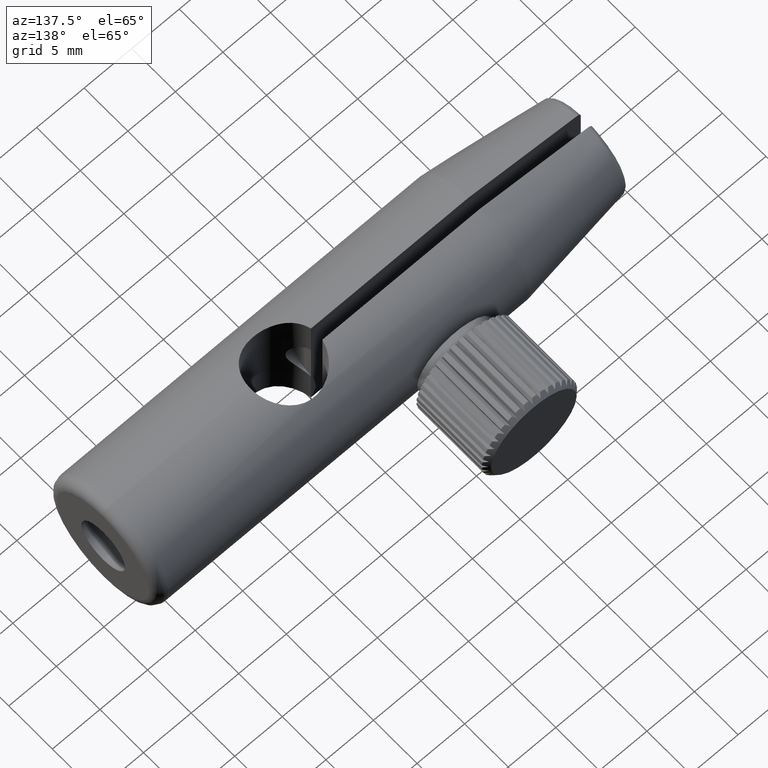
[diagram: clean part render]
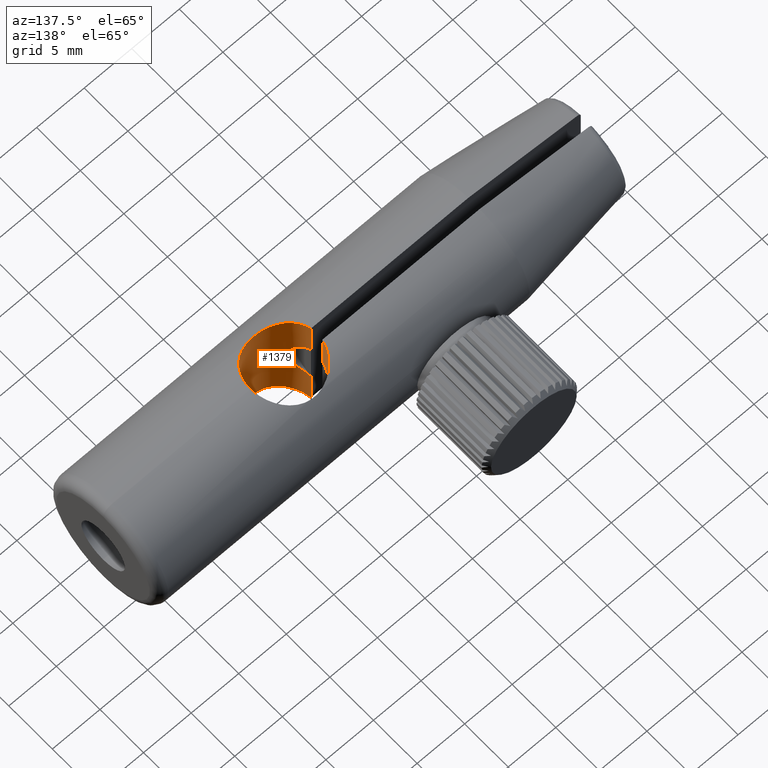
[diagram: same view with one face highlighted and labeled with its STEP entity id]
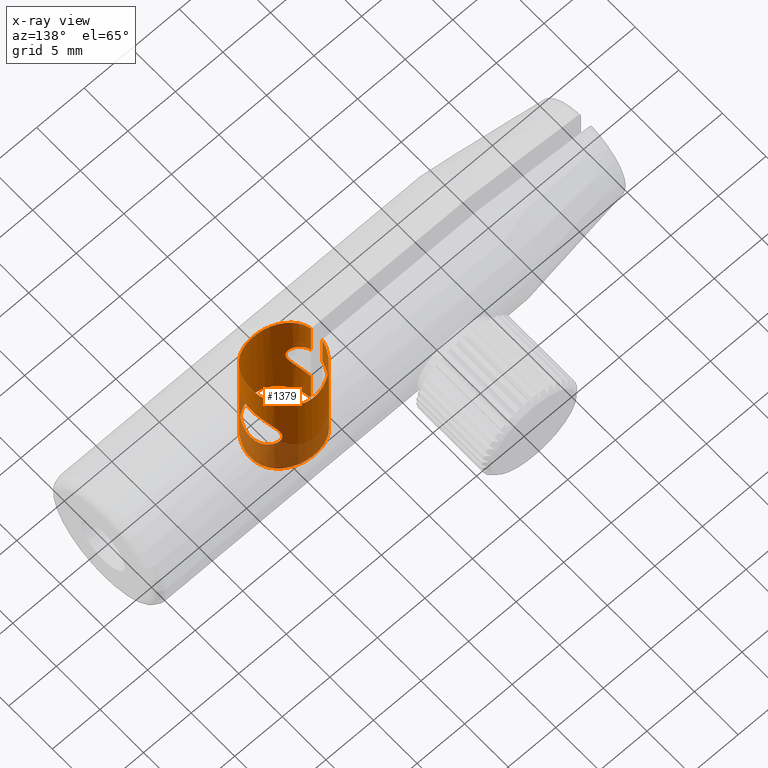
[diagram: x-ray of the same camera — body ghosted, the highlighted face saturated]
A machine part, auxiliary view. The second image highlights one B-rep face of the part: STEP entity #1379.
The next image is the same camera in x-ray: the body ghosted, the highlighted face saturated — about 23% of this face is hidden behind the body in this view.
In plain terms, the highlighted cylindrical surface (partial cylindrical patch) has radius 3.5 mm, axis along (-0, -0, 1).
Its self-contained STEP definition (entity closure, byte-faithful):
#146 = EDGE_CURVE ( 'NONE', #3137, #3123, #4291, .T. ) ;
#182 = EDGE_CURVE ( 'NONE', #3126, #3125, #4298, .T. ) ;
#183 = EDGE_CURVE ( 'NONE', #3123, #3125, #1323, .T. ) ;
#184 = EDGE_CURVE ( 'NONE', #3138, #3137, #1325, .T. ) ;
#185 = EDGE_CURVE ( 'NONE', #3138, #3139, #4299, .T. ) ;
#186 = EDGE_CURVE ( 'NONE', #3139, #3140, #1324, .T. ) ;
#187 = EDGE_CURVE ( 'NONE', #3124, #3140, #4300, .T. ) ;
#188 = EDGE_CURVE ( 'NONE', #3124, #3126, #1328, .T. ) ;
#189 = EDGE_CURVE ( 'NONE', #373, #373, #4301, .T. ) ;
#373 = VERTEX_POINT ( 'NONE', #1727 ) ;
#502 = CARTESIAN_POINT ( 'NONE',  ( -4.801174568884125200, -3.318439813343255100, 2.414021540914655700 ) ) ;
#503 = CARTESIAN_POINT ( 'NONE',  ( -4.801174568884125200, -2.018439813343260600, 2.414021540914653000 ) ) ;
#504 = CARTESIAN_POINT ( 'NONE',  ( -4.801174568884125200, -3.318439813343258200, 6.316644678941503200 ) ) ;
#505 = CARTESIAN_POINT ( 'NONE',  ( -4.801174568884125200, -2.018439813343262400, 6.316644678941504100 ) ) ;
#516 = CARTESIAN_POINT ( 'NONE',  ( -4.801174568884125200, -3.318439813343255100, -2.414021540914655700 ) ) ;
#517 = CARTESIAN_POINT ( 'NONE',  ( -4.801174568884119000, -3.318439813343267100, -6.316644678941503200 ) ) ;
#518 = CARTESIAN_POINT ( 'NONE',  ( -4.801174568884125200, -2.018439813343262400, -6.316644678941504100 ) ) ;
#519 = CARTESIAN_POINT ( 'NONE',  ( -4.801174568884125200, -2.018439813343262400, -2.414021540914653500 ) ) ;
#1228 = ORIENTED_EDGE ( 'NONE', *, *, #189, .T. ) ;
#1229 = ORIENTED_EDGE ( 'NONE', *, *, #188, .F. ) ;
#1230 = ORIENTED_EDGE ( 'NONE', *, *, #187, .T. ) ;
#1231 = ORIENTED_EDGE ( 'NONE', *, *, #186, .F. ) ;
#1232 = ORIENTED_EDGE ( 'NONE', *, *, #185, .F. ) ;
#1233 = ORIENTED_EDGE ( 'NONE', *, *, #184, .T. ) ;
#1234 = ORIENTED_EDGE ( 'NONE', *, *, #146, .T. ) ;
#1235 = ORIENTED_EDGE ( 'NONE', *, *, #183, .T. ) ;
#1236 = ORIENTED_EDGE ( 'NONE', *, *, #182, .F. ) ;
#1317 = VECTOR ( 'NONE', #3943, 1000.000000000000000 ) ;
#1323 = LINE ( 'NONE', #3942, #1317 ) ;
#1324 = LINE ( 'NONE', #4010, #1326 ) ;
#1325 = LINE ( 'NONE', #3944, #1327 ) ;
#1326 = VECTOR ( 'NONE', #4011, 1000.000000000000000 ) ;
#1327 = VECTOR ( 'NONE', #3945, 1000.000000000000000 ) ;
#1328 = LINE ( 'NONE', #4161, #1329 ) ;
#1329 = VECTOR ( 'NONE', #4162, 1000.000000000000000 ) ;
#1379 = ADVANCED_FACE ( 'NONE', ( #2965, #2963 ), #2970, .F. ) ;
#1727 = CARTESIAN_POINT ( 'NONE',  ( 2.137938688919406500, -2.668439813343262300, -2.499999999999992000 ) ) ;
#2022 = CARTESIAN_POINT ( 'NONE',  ( -3.907057643659554500, -5.071942306700565300, -0.7014991200754838700 ) ) ;
#2023 = CARTESIAN_POINT ( 'NONE',  ( -3.872282900429453000, -5.107688333156316300, -0.5656007088658051600 ) ) ;
#2024 = CARTESIAN_POINT ( 'NONE',  ( -3.824636848902693800, -5.155781263479024500, -0.2880451591611948300 ) ) ;
#2025 = CARTESIAN_POINT ( 'NONE',  ( -3.811544229730798900, -5.168446499600765500, -0.1431065841494969500 ) ) ;
#2026 = CARTESIAN_POINT ( 'NONE',  ( -3.811557883562172800, -5.168433121632776100, 0.1433400999958268600 ) ) ;
#2027 = CARTESIAN_POINT ( 'NONE',  ( -3.824202075828434700, -5.156213388679649500, 0.2848746506364922000 ) ) ;
#2028 = CARTESIAN_POINT ( 'NONE',  ( -3.872036152627185100, -5.107944025755741400, 0.5647921089560454800 ) ) ;
#2029 = CARTESIAN_POINT ( 'NONE',  ( -3.906789171767453400, -5.072210702923512400, 0.7003702296297604800 ) ) ;
#2030 = CARTESIAN_POINT ( 'NONE',  ( -4.030656747493247300, -4.936393934341954700, 1.086699543399859200 ) ) ;
#2031 = CARTESIAN_POINT ( 'NONE',  ( -4.140790234009658700, -4.805396711013339800, 1.323734706128516300 ) ) ;
#2032 = CARTESIAN_POINT ( 'NONE',  ( -4.360693313347127300, -4.483963243267885100, 1.738600882923855700 ) ) ;
#2033 = CARTESIAN_POINT ( 'NONE',  ( -4.474223428250091700, -4.287949335270940100, 1.923164104397818900 ) ) ;
#2034 = CARTESIAN_POINT ( 'NONE',  ( -4.618971733327239100, -3.955733694029032400, 2.147258084340028200 ) ) ;
#2035 = CARTESIAN_POINT ( 'NONE',  ( -4.663310688927949400, -3.838416715746694900, 2.213599066118388000 ) ) ;
#2036 = CARTESIAN_POINT ( 'NONE',  ( -4.741397210122354300, -3.588864871858458800, 2.328451092321895300 ) ) ;
#2037 = CARTESIAN_POINT ( 'NONE',  ( -4.775201441121231100, -3.455862164168098900, 2.377019166858753300 ) ) ;
#2038 = CARTESIAN_POINT ( 'NONE',  ( -4.801174568884125200, -3.318439813343255100, 2.414021540914655700 ) ) ;
#2509 = EDGE_LOOP ( 'NONE', ( #1229, #1230, #1231, #1232, #1233, #1234, #1235, #1236 ) ) ;
#2513 = EDGE_LOOP ( 'NONE', ( #1228 ) ) ;
#2693 = CARTESIAN_POINT ( 'NONE',  ( -4.032136715592270300, -4.934718615230265100, -1.090725169913839600 ) ) ;
#2694 = CARTESIAN_POINT ( 'NONE',  ( -4.361861678782672100, -4.482276173698826600, -1.740826950091839400 ) ) ;
#2786 = CARTESIAN_POINT ( 'NONE',  ( -4.139386808984292900, -4.807427346478365700, -1.321065155625026100 ) ) ;
#2844 = DIRECTION ( 'NONE',  ( 1.000000000000000000, 0.0000000000000000000, 0.0000000000000000000 ) ) ;
#2849 = CARTESIAN_POINT ( 'NONE',  ( -1.362061311080596600, -2.668439813343260100, -30.00000000000000000 ) ) ;
#2850 = DIRECTION ( 'NONE',  ( -0.0000000000000000000, -0.0000000000000000000, 1.000000000000000000 ) ) ;
#2963 = FACE_OUTER_BOUND ( 'NONE', #2509, .T. ) ;
#2965 = FACE_BOUND ( 'NONE', #2513, .T. ) ;
#2970 = CYLINDRICAL_SURFACE ( 'NONE', #3856, 3.500000000000000000 ) ;
#3123 = VERTEX_POINT ( 'NONE', #502 ) ;
#3124 = VERTEX_POINT ( 'NONE', #503 ) ;
#3125 = VERTEX_POINT ( 'NONE', #504 ) ;
#3126 = VERTEX_POINT ( 'NONE', #505 ) ;
#3137 = VERTEX_POINT ( 'NONE', #516 ) ;
#3138 = VERTEX_POINT ( 'NONE', #517 ) ;
#3139 = VERTEX_POINT ( 'NONE', #518 ) ;
#3140 = VERTEX_POINT ( 'NONE', #519 ) ;
#3856 = AXIS2_PLACEMENT_3D ( 'NONE', #2849, #2850, #2844 ) ;
#3869 = CARTESIAN_POINT ( 'NONE',  ( -4.699473150955577200, -3.744544294948471300, -6.261497247746842900 ) ) ;
#3874 = CARTESIAN_POINT ( 'NONE',  ( -4.699473150955579800, -1.592335331738054400, 6.261497247746842900 ) ) ;
#3875 = CARTESIAN_POINT ( 'NONE',  ( -4.760050389413386500, -1.800854104367704200, 6.294254514855556900 ) ) ;
#3876 = CARTESIAN_POINT ( 'NONE',  ( -4.760050389413387400, -3.536025522318813100, -6.294254514855559500 ) ) ;
#3880 = CARTESIAN_POINT ( 'NONE',  ( -4.801174568884125200, -2.018439813343262400, 6.316644678941504100 ) ) ;
#3881 = CARTESIAN_POINT ( 'NONE',  ( -4.542487494299270300, -1.191548504761067900, 6.179250820407477600 ) ) ;
#3882 = CARTESIAN_POINT ( 'NONE',  ( -4.444908888295482400, -0.9975737805489068900, 6.129167951311086600 ) ) ;
#3883 = CARTESIAN_POINT ( 'NONE',  ( -4.218527386211835800, -0.6346394186363516500, 6.018483947757518500 ) ) ;
#3884 = CARTESIAN_POINT ( 'NONE',  ( -4.090767994574950900, -0.4664672169950951900, 5.958357315595719700 ) ) ;
#3885 = CARTESIAN_POINT ( 'NONE',  ( -3.806463594197609700, -0.1545939632746111700, 5.833633880993385600 ) ) ;
#3886 = CARTESIAN_POINT ( 'NONE',  ( -3.648551071124258400, -0.01017359506629925100, 5.768559268262939600 ) ) ;
#3887 = CARTESIAN_POINT ( 'NONE',  ( -3.313059121279731100, 0.2449812435270298800, 5.643990880935187500 ) ) ;
#3888 = CARTESIAN_POINT ( 'NONE',  ( -3.134629986206148200, 0.3570335318772553400, 5.584019338335116000 ) ) ;
#3889 = CARTESIAN_POINT ( 'NONE',  ( -2.754149803562887300, 0.5498793597305595700, 5.475142247811082700 ) ) ;
#3890 = CARTESIAN_POINT ( 'NONE',  ( -2.550957580932241800, 0.6305511266229035800, 5.426257316449543600 ) ) ;
#3891 = CARTESIAN_POINT ( 'NONE',  ( -2.135572456239876800, 0.7518666160224428700, 5.350618059209669900 ) ) ;
#3892 = CARTESIAN_POINT ( 'NONE',  ( -1.921221440377348400, 0.7937385455229197800, 5.323202001738797800 ) ) ;
#3893 = CARTESIAN_POINT ( 'NONE',  ( -1.479050898314921100, 0.8366496969653165500, 5.295045426116951500 ) ) ;
#3894 = CARTESIAN_POINT ( 'NONE',  ( -1.259503728083939200, 0.8369046694698580900, 5.294868840934895200 ) ) ;
#3895 = CARTESIAN_POINT ( 'NONE',  ( -0.8233591121779777500, 0.7967813833361041500, 5.321213963371104000 ) ) ;
#3896 = CARTESIAN_POINT ( 'NONE',  ( -0.6044718831049203900, 0.7554833202158973700, 5.348294270263426900 ) ) ;
#3897 = CARTESIAN_POINT ( 'NONE',  ( -0.1868898701961462000, 0.6355219676753455200, 5.423222084280020300 ) ) ;
#3898 = CARTESIAN_POINT ( 'NONE',  ( 0.01324740743534748100, 0.5572037336549889900, 5.470829682784219500 ) ) ;
#3899 = CARTESIAN_POINT ( 'NONE',  ( 0.3978124585505645200, 0.3645611227729194100, 5.579933604608812400 ) ) ;
#3900 = CARTESIAN_POINT ( 'NONE',  ( 0.5785044671701669000, 0.2519506828635674200, 5.640375935340168600 ) ) ;
#3901 = CARTESIAN_POINT ( 'NONE',  ( 0.9151294280087516300, -0.002191788897886082400, 5.764862774987863100 ) ) ;
#3902 = CARTESIAN_POINT ( 'NONE',  ( 1.073021486824746300, -0.1455014595951656700, 5.829712277888181600 ) ) ;
#3903 = CARTESIAN_POINT ( 'NONE',  ( 1.359446799656526300, -0.4575034115759653600, 5.955041847637481600 ) ) ;
#3904 = CARTESIAN_POINT ( 'NONE',  ( 1.487419862095141800, -0.6250336449865211400, 6.015173386857733300 ) ) ;
#3905 = CARTESIAN_POINT ( 'NONE',  ( 1.713470041917431400, -0.9843499636358662400, 6.125492716586348900 ) ) ;
#3906 = CARTESIAN_POINT ( 'NONE',  ( 1.812420311660794200, -1.178659965904623700, 6.176182387975883300 ) ) ;
#3907 = CARTESIAN_POINT ( 'NONE',  ( 1.971688931152758800, -1.580833777424855100, 6.259535605299457300 ) ) ;
#3908 = CARTESIAN_POINT ( 'NONE',  ( 2.032463792364378900, -1.788246057224485400, 6.292383362842036500 ) ) ;
#3909 = CARTESIAN_POINT ( 'NONE',  ( 2.115461110366854100, -2.216356265136889100, 6.337542891272837800 ) ) ;
#3910 = CARTESIAN_POINT ( 'NONE',  ( 2.137388070926688100, -2.439827234388385300, 6.349696510398239000 ) ) ;
#3911 = CARTESIAN_POINT ( 'NONE',  ( 2.138468218559465700, -2.879869945078283400, 6.350291866112491400 ) ) ;
#3912 = CARTESIAN_POINT ( 'NONE',  ( 2.118440663914479900, -3.098065428137651600, 6.339182307576887600 ) ) ;
#3913 = CARTESIAN_POINT ( 'NONE',  ( 2.037167847976111300, -3.530827945828122000, 6.294926306680056700 ) ) ;
#3914 = CARTESIAN_POINT ( 'NONE',  ( 1.975966503911373600, -3.742794200847972900, 6.261823474597481000 ) ) ;
#3915 = CARTESIAN_POINT ( 'NONE',  ( 1.818511817384025300, -4.145132610813152300, 6.179324312485241500 ) ) ;
#3916 = CARTESIAN_POINT ( 'NONE',  ( 1.720844865711567100, -4.339240626006307400, 6.129194734634630500 ) ) ;
#3917 = CARTESIAN_POINT ( 'NONE',  ( 1.494083063995482700, -4.702727196979123100, 6.018328529703933500 ) ) ;
#3918 = CARTESIAN_POINT ( 'NONE',  ( 1.366073119870060000, -4.871158906728422400, 5.958088851518041900 ) ) ;
#3919 = CARTESIAN_POINT ( 'NONE',  ( 1.081122535865275400, -5.183502748485199900, 5.833116885441467200 ) ) ;
#3920 = CARTESIAN_POINT ( 'NONE',  ( 0.9229873024282628800, -5.327956063804329300, 5.767983074481741700 ) ) ;
#3921 = CARTESIAN_POINT ( 'NONE',  ( 0.5871230017396141800, -5.583084623130700300, 5.643359023379025200 ) ) ;
#3922 = CARTESIAN_POINT ( 'NONE',  ( 0.4084069458923464400, -5.695171401587510100, 5.583338361714749200 ) ) ;
#3923 = CARTESIAN_POINT ( 'NONE',  ( 0.02704564600092315700, -5.888073925787107800, 5.474370059710888200 ) ) ;
#3924 = CARTESIAN_POINT ( 'NONE',  ( -0.1763177828900948100, -5.968577738162269800, 5.425557496755290600 ) ) ;
#3925 = CARTESIAN_POINT ( 'NONE',  ( -0.5921911759722303700, -6.089579683699718700, 5.350082846170108700 ) ) ;
#3926 = CARTESIAN_POINT ( 'NONE',  ( -0.8075098847003754400, -6.131355491160523900, 5.322720691628051200 ) ) ;
#3927 = CARTESIAN_POINT ( 'NONE',  ( -1.249616464185292700, -6.173674246670028500, 5.294947792016307300 ) ) ;
#3928 = CARTESIAN_POINT ( 'NONE',  ( -1.469286510517309000, -6.173663081200556000, 5.294950917903379100 ) ) ;
#3929 = CARTESIAN_POINT ( 'NONE',  ( -1.905961823981547200, -6.132867563057276400, 5.321732400971088200 ) ) ;
#3930 = CARTESIAN_POINT ( 'NONE',  ( -2.125107167008066300, -6.091157973987782800, 5.349071091070701600 ) ) ;
#3931 = CARTESIAN_POINT ( 'NONE',  ( -2.751500211293974400, -5.910108193111530500, 5.462081168725616100 ) ) ;
#3932 = CARTESIAN_POINT ( 'NONE',  ( -3.139896837518299800, -5.712718441790018500, 5.579919874981756700 ) ) ;
#3933 = CARTESIAN_POINT ( 'NONE',  ( -3.644688553160258400, -5.330055066415389400, 5.767015154247674000 ) ) ;
#3934 = CARTESIAN_POINT ( 'NONE',  ( -3.802636923107913300, -5.186069907346871200, 5.832015890304534300 ) ) ;
#3935 = CARTESIAN_POINT ( 'NONE',  ( -4.088454578183807100, -4.873354859631763100, 5.957282960683319800 ) ) ;
#3936 = CARTESIAN_POINT ( 'NONE',  ( -4.216194759741426900, -4.705381966194951600, 6.017382477611920200 ) ) ;
#3937 = CARTESIAN_POINT ( 'NONE',  ( -4.441787749068567800, -4.344893255579751900, 6.127603860559888800 ) ) ;
#3938 = CARTESIAN_POINT ( 'NONE',  ( -4.540352602302431400, -4.150202044265500800, 6.178143848618546500 ) ) ;
#3939 = CARTESIAN_POINT ( 'NONE',  ( -4.699139429048687000, -3.745966831762176200, 6.261311064608441300 ) ) ;
#3940 = CARTESIAN_POINT ( 'NONE',  ( -4.759995870458967100, -3.536313979024888100, 6.294224831872194100 ) ) ;
#3941 = CARTESIAN_POINT ( 'NONE',  ( -4.801174568884125200, -3.318439813343258200, 6.316644678941503200 ) ) ;
#3942 = CARTESIAN_POINT ( 'NONE',  ( -4.801174568884125200, -3.318439813343258200, -30.00000000000000000 ) ) ;
#3943 = DIRECTION ( 'NONE',  ( -0.0000000000000000000, -0.0000000000000000000, 1.000000000000000000 ) ) ;
#3944 = CARTESIAN_POINT ( 'NONE',  ( -4.801174568884125200, -3.318439813343258200, -30.00000000000000000 ) ) ;
#3945 = DIRECTION ( 'NONE',  ( -0.0000000000000000000, -0.0000000000000000000, 1.000000000000000000 ) ) ;
#3946 = CARTESIAN_POINT ( 'NONE',  ( -4.749263851576572800, -1.743783142397881800, 2.340067421993719400 ) ) ;
#3947 = CARTESIAN_POINT ( 'NONE',  ( -4.801174568884119000, -3.318439813343267100, -6.316644678941503200 ) ) ;
#3948 = CARTESIAN_POINT ( 'NONE',  ( -4.669036392935467500, -1.496221924060394000, 2.224740629452088800 ) ) ;
#3949 = CARTESIAN_POINT ( 'NONE',  ( -4.542487494299266800, -4.145331121925458700, -6.179250820407477600 ) ) ;
#3950 = CARTESIAN_POINT ( 'NONE',  ( -4.444908888295480600, -4.339305846137619900, -6.129167951311087500 ) ) ;
#3951 = CARTESIAN_POINT ( 'NONE',  ( -4.218527386211831300, -4.702240208050175100, -6.018483947757519400 ) ) ;
#3952 = CARTESIAN_POINT ( 'NONE',  ( -4.090767994574946400, -4.870412409691432700, -5.958357315595720600 ) ) ;
#3953 = CARTESIAN_POINT ( 'NONE',  ( -3.806463594197604800, -5.182285663411915000, -5.833633880993385600 ) ) ;
#3954 = CARTESIAN_POINT ( 'NONE',  ( -3.648551071124254400, -5.326706031620226200, -5.768559268262938700 ) ) ;
#3955 = CARTESIAN_POINT ( 'NONE',  ( -3.313059121279728000, -5.581860870213556100, -5.643990880935188400 ) ) ;
#3956 = CARTESIAN_POINT ( 'NONE',  ( -3.134629986206141100, -5.693913158563780100, -5.584019338335116900 ) ) ;
#3957 = CARTESIAN_POINT ( 'NONE',  ( -2.754149803562878400, -5.886758986417085300, -5.475142247811086300 ) ) ;
#3958 = CARTESIAN_POINT ( 'NONE',  ( -2.550957580932232900, -5.967430753309427500, -5.426257316449542700 ) ) ;
#3959 = CARTESIAN_POINT ( 'NONE',  ( -2.135572456239867000, -6.088746242708965400, -5.350618059209672600 ) ) ;
#3960 = CARTESIAN_POINT ( 'NONE',  ( -1.921221440377338000, -6.130618172209442400, -5.323202001738798600 ) ) ;
#3961 = CARTESIAN_POINT ( 'NONE',  ( -1.479050898314911300, -6.173529323651838000, -5.295045426116952400 ) ) ;
#3962 = CARTESIAN_POINT ( 'NONE',  ( -1.259503728083929600, -6.173784296156377100, -5.294868840934895200 ) ) ;
#3963 = CARTESIAN_POINT ( 'NONE',  ( -0.8233591121779682000, -6.133661010022621900, -5.321213963371106600 ) ) ;
#3964 = CARTESIAN_POINT ( 'NONE',  ( -0.6044718831049119600, -6.092362946902415600, -5.348294270263429500 ) ) ;
#3965 = CARTESIAN_POINT ( 'NONE',  ( -0.1868898701961384200, -5.972401594361865100, -5.423222084280025600 ) ) ;
#3966 = CARTESIAN_POINT ( 'NONE',  ( 0.01324740743535577700, -5.894083360341507000, -5.470829682784221300 ) ) ;
#3967 = CARTESIAN_POINT ( 'NONE',  ( 0.3978124585505721200, -5.701440749459435700, -5.579933604608813300 ) ) ;
#3968 = CARTESIAN_POINT ( 'NONE',  ( 0.5785044671701740100, -5.588830309550084000, -5.640375935340172100 ) ) ;
#3969 = CARTESIAN_POINT ( 'NONE',  ( 0.9151294280087571800, -5.334687837788631100, -5.764862774987868500 ) ) ;
#3970 = CARTESIAN_POINT ( 'NONE',  ( 1.073021486824752700, -5.191378167091348100, -5.829712277888185100 ) ) ;
#3971 = CARTESIAN_POINT ( 'NONE',  ( 1.359446799656531100, -4.879376215110547800, -5.955041847637486000 ) ) ;
#3972 = CARTESIAN_POINT ( 'NONE',  ( 1.487419862095148000, -4.711845981699990900, -6.015173386857735900 ) ) ;
#3973 = CARTESIAN_POINT ( 'NONE',  ( 1.713470041917436500, -4.352529663050646000, -6.125492716586353300 ) ) ;
#3974 = CARTESIAN_POINT ( 'NONE',  ( 1.812420311660799300, -4.158219660781886000, -6.176182387975885900 ) ) ;
#3975 = CARTESIAN_POINT ( 'NONE',  ( 1.971688931152761700, -3.756045849261655100, -6.259535605299459100 ) ) ;
#3976 = CARTESIAN_POINT ( 'NONE',  ( 2.032463792364381100, -3.548633569462026600, -6.292383362842040000 ) ) ;
#3977 = CARTESIAN_POINT ( 'NONE',  ( 2.115461110366855000, -3.120523361549621700, -6.337542891272839500 ) ) ;
#3978 = CARTESIAN_POINT ( 'NONE',  ( 2.137388070926689500, -2.897052392298127300, -6.349696510398239000 ) ) ;
#3979 = CARTESIAN_POINT ( 'NONE',  ( 2.138468218559466100, -2.457009681608231000, -6.350291866112491400 ) ) ;
#3980 = CARTESIAN_POINT ( 'NONE',  ( 2.118440663914480400, -2.238814198548860100, -6.339182307576888500 ) ) ;
#3981 = CARTESIAN_POINT ( 'NONE',  ( 2.037167847976107700, -1.806051680858390600, -6.294926306680051400 ) ) ;
#3982 = CARTESIAN_POINT ( 'NONE',  ( 1.975966503911370100, -1.594085425838542400, -6.261823474597475700 ) ) ;
#3983 = CARTESIAN_POINT ( 'NONE',  ( 1.818511817384021800, -1.191747015873362500, -6.179324312485237900 ) ) ;
#3984 = CARTESIAN_POINT ( 'NONE',  ( 1.720844865711562300, -0.9976390006802057200, -6.129194734634622500 ) ) ;
#3985 = CARTESIAN_POINT ( 'NONE',  ( 1.494083063995479400, -0.6341524297073917200, -6.018328529703930000 ) ) ;
#3986 = CARTESIAN_POINT ( 'NONE',  ( 1.366073119870054900, -0.4657207199580909500, -5.958088851518037500 ) ) ;
#3987 = CARTESIAN_POINT ( 'NONE',  ( 1.081122535865269400, -0.1533768782013150700, -5.833116885441462800 ) ) ;
#3988 = CARTESIAN_POINT ( 'NONE',  ( 0.9229873024282583300, -0.008923562882188516100, -5.767983074481737300 ) ) ;
#3989 = CARTESIAN_POINT ( 'NONE',  ( 0.5871230017396090700, 0.2462049964441828900, -5.643359023379022500 ) ) ;
#3990 = CARTESIAN_POINT ( 'NONE',  ( 0.4084069458923430500, 0.3582917749009908400, -5.583338361714743800 ) ) ;
#3991 = CARTESIAN_POINT ( 'NONE',  ( 0.02704564600091854300, 0.5511942991005899200, -5.474370059710882900 ) ) ;
#3992 = CARTESIAN_POINT ( 'NONE',  ( -0.1763177828900994400, 0.6316981114757501700, -5.425557496755283500 ) ) ;
#3993 = CARTESIAN_POINT ( 'NONE',  ( -0.5921911759722349200, 0.7527000570131983100, -5.350082846170104200 ) ) ;
#3994 = CARTESIAN_POINT ( 'NONE',  ( -0.8075098847003759900, 0.7944758644740039800, -5.322720691628047600 ) ) ;
#3995 = CARTESIAN_POINT ( 'NONE',  ( -1.249616464185293600, 0.8367946199835083500, -5.294947792016303700 ) ) ;
#3996 = CARTESIAN_POINT ( 'NONE',  ( -1.469286510517315600, 0.8367834545140346900, -5.294950917903375600 ) ) ;
#3997 = CARTESIAN_POINT ( 'NONE',  ( -1.905961823981554600, 0.7959879363707516000, -5.321732400971085600 ) ) ;
#3998 = CARTESIAN_POINT ( 'NONE',  ( -2.125107167008073000, 0.7542783473012604200, -5.349071091070700700 ) ) ;
#3999 = CARTESIAN_POINT ( 'NONE',  ( -2.751500211293982400, 0.5732285664250071900, -5.462081168725616100 ) ) ;
#4000 = CARTESIAN_POINT ( 'NONE',  ( -3.139896837518307400, 0.3758388151034952600, -5.579919874981758500 ) ) ;
#4001 = CARTESIAN_POINT ( 'NONE',  ( -3.644688553160265100, -0.006824560271134506700, -5.767015154247675700 ) ) ;
#4002 = CARTESIAN_POINT ( 'NONE',  ( -3.802636923107916000, -0.1508097193396531800, -5.832015890304534300 ) ) ;
#4003 = CARTESIAN_POINT ( 'NONE',  ( -4.088454578183807100, -0.4635247670547609800, -5.957282960683318000 ) ) ;
#4004 = CARTESIAN_POINT ( 'NONE',  ( -4.216194759741427800, -0.6314976604915721900, -6.017382477611915800 ) ) ;
#4005 = CARTESIAN_POINT ( 'NONE',  ( -4.441787749068568700, -0.9919863711067735700, -6.127603860559886200 ) ) ;
#4006 = CARTESIAN_POINT ( 'NONE',  ( -4.540352602302430500, -1.186677582421020300, -6.178143848618542900 ) ) ;
#4007 = CARTESIAN_POINT ( 'NONE',  ( -4.699139429048687900, -1.590912794924345600, -6.261311064608439600 ) ) ;
#4008 = CARTESIAN_POINT ( 'NONE',  ( -4.759995870458965300, -1.800565647661628500, -6.294224831872190500 ) ) ;
#4009 = CARTESIAN_POINT ( 'NONE',  ( -4.801174568884125200, -2.018439813343262400, -6.316644678941504100 ) ) ;
#4010 = CARTESIAN_POINT ( 'NONE',  ( -4.801174568884125200, -2.018439813343262400, -30.00000000000000000 ) ) ;
#4011 = DIRECTION ( 'NONE',  ( -0.0000000000000000000, -0.0000000000000000000, 1.000000000000000000 ) ) ;
#4012 = CARTESIAN_POINT ( 'NONE',  ( -4.801174568884125200, -2.018439813343260600, 2.414021540914653000 ) ) ;
#4013 = CARTESIAN_POINT ( 'NONE',  ( -4.473186181043831600, -1.046379082217552700, 1.921583886493011300 ) ) ;
#4014 = CARTESIAN_POINT ( 'NONE',  ( -4.361861678782670300, -0.8546034529876963500, 1.740826950091835200 ) ) ;
#4015 = CARTESIAN_POINT ( 'NONE',  ( -4.139386808984297300, -0.5294522802081576000, 1.321065155625022800 ) ) ;
#4143 = CARTESIAN_POINT ( 'NONE',  ( -4.032136715592272900, -0.4021610114562582700, 1.090725169913836500 ) ) ;
#4144 = CARTESIAN_POINT ( 'NONE',  ( -3.907057643659560800, -0.2649373199859567100, 0.7014991200754819900 ) ) ;
#4145 = CARTESIAN_POINT ( 'NONE',  ( -3.872282900429457000, -0.2291912935302083700, 0.5656007088658033800 ) ) ;
#4146 = CARTESIAN_POINT ( 'NONE',  ( -3.824636848902697800, -0.1810983632075000800, 0.2880451591611934400 ) ) ;
#4147 = CARTESIAN_POINT ( 'NONE',  ( -3.811544229730802400, -0.1684331270857583300, 0.1431065841494964000 ) ) ;
#4148 = CARTESIAN_POINT ( 'NONE',  ( -3.811557883562178200, -0.1684465050537483600, -0.1433400999958271400 ) ) ;
#4149 = CARTESIAN_POINT ( 'NONE',  ( -3.824202075828439600, -0.1806662380068760900, -0.2848746506364917000 ) ) ;
#4150 = CARTESIAN_POINT ( 'NONE',  ( -3.872036152627190900, -0.2289356009307825000, -0.5647921089560440400 ) ) ;
#4151 = CARTESIAN_POINT ( 'NONE',  ( -3.906789171767457900, -0.2646689237630118200, -0.7003702296297591400 ) ) ;
#4152 = CARTESIAN_POINT ( 'NONE',  ( -4.030656747493250000, -0.4004856923445703800, -1.086699543399856700 ) ) ;
#4153 = CARTESIAN_POINT ( 'NONE',  ( -4.140790234009662300, -0.5314829156731839500, -1.323734706128514500 ) ) ;
#4154 = CARTESIAN_POINT ( 'NONE',  ( -4.360693313347127300, -0.8529163834186388500, -1.738600882923852800 ) ) ;
#4155 = CARTESIAN_POINT ( 'NONE',  ( -4.474223428250090800, -1.048930291415582500, -1.923164104397815800 ) ) ;
#4156 = CARTESIAN_POINT ( 'NONE',  ( -4.618971733327240900, -1.381145932657487500, -2.147258084340026900 ) ) ;
#4157 = CARTESIAN_POINT ( 'NONE',  ( -4.663310688927948500, -1.498462910939827100, -2.213599066118385700 ) ) ;
#4158 = CARTESIAN_POINT ( 'NONE',  ( -4.741397210122353400, -1.748014754828063100, -2.328451092321892200 ) ) ;
#4159 = CARTESIAN_POINT ( 'NONE',  ( -4.775201441121230200, -1.881017462518417100, -2.377019166858750600 ) ) ;
#4160 = CARTESIAN_POINT ( 'NONE',  ( -4.801174568884125200, -2.018439813343262400, -2.414021540914653500 ) ) ;
#4161 = CARTESIAN_POINT ( 'NONE',  ( -4.801174568884125200, -2.018439813343262400, -30.00000000000000000 ) ) ;
#4162 = DIRECTION ( 'NONE',  ( -0.0000000000000000000, -0.0000000000000000000, 1.000000000000000000 ) ) ;
#4164 = CARTESIAN_POINT ( 'NONE',  ( 2.137938688919406500, -2.668439813343263200, -2.499999999999992000 ) ) ;
#4165 = CARTESIAN_POINT ( 'NONE',  ( 2.137938688919406500, -2.496152348457155100, -2.499999999999992000 ) ) ;
#4166 = CARTESIAN_POINT ( 'NONE',  ( 2.125298472796624900, -2.327807391091664800, -2.482389257258125900 ) ) ;
#4167 = CARTESIAN_POINT ( 'NONE',  ( 2.077230009068301800, -1.998377186089946000, -2.414394944328272200 ) ) ;
#4168 = CARTESIAN_POINT ( 'NONE',  ( 2.041220529137230100, -1.836315787631046700, -2.363164330612191200 ) ) ;
#4169 = CARTESIAN_POINT ( 'NONE',  ( 1.908627340879401000, -1.383283614884940300, -2.169395707598169100 ) ) ;
#4170 = CARTESIAN_POINT ( 'NONE',  ( 1.784904479301647100, -1.115134097665761500, -1.984018392691268500 ) ) ;
#4171 = CARTESIAN_POINT ( 'NONE',  ( 1.589250419883368300, -0.7826250955826280500, -1.648779778351481000 ) ) ;
#4172 = CARTESIAN_POINT ( 'NONE',  ( 1.521530193849161700, -0.6817969899799806200, -1.525753973184662500 ) ) ;
#4173 = CARTESIAN_POINT ( 'NONE',  ( 1.392500057745917200, -0.5064404284468422300, -1.265082429732195200 ) ) ;
#4174 = CARTESIAN_POINT ( 'NONE',  ( 1.330616058193786300, -0.4309189472062564500, -1.126721320548917900 ) ) ;
#4175 = CARTESIAN_POINT ( 'NONE',  ( 1.220538567044113300, -0.3047162865933290000, -0.8299467752011882000 ) ) ;
#4176 = CARTESIAN_POINT ( 'NONE',  ( 1.172612595621572100, -0.2543819442408594100, -0.6709520716062453700 ) ) ;
#4177 = CARTESIAN_POINT ( 'NONE',  ( 1.106301800025531600, -0.1866197633753873800, -0.3441239854258949500 ) ) ;
#4178 = CARTESIAN_POINT ( 'NONE',  ( 1.087529414997489700, -0.1685387563951082100, -0.1715328150568221400 ) ) ;
#4179 = CARTESIAN_POINT ( 'NONE',  ( 1.087328304567130000, -0.1683417091530795300, 0.1686365043413489100 ) ) ;
#4180 = CARTESIAN_POINT ( 'NONE',  ( 1.105461850697567500, -0.1857838640400421600, 0.3387360833767942800 ) ) ;
#4181 = CARTESIAN_POINT ( 'NONE',  ( 1.171852436085241400, -0.2535832464957890600, 0.6684238612929362900 ) ) ;
#4182 = CARTESIAN_POINT ( 'NONE',  ( 1.218672703942885300, -0.3026871006725085400, 0.8242089394613725300 ) ) ;
#4183 = CARTESIAN_POINT ( 'NONE',  ( 1.328565697997806000, -0.4284620786713166900, 1.121876116855604000 ) ) ;
#4184 = CARTESIAN_POINT ( 'NONE',  ( 1.391618446699147500, -0.5053288299858947900, 1.263161700561546100 ) ) ;
#4185 = CARTESIAN_POINT ( 'NONE',  ( 1.520467118372345300, -0.6802669868206926400, 1.523743882666660500 ) ) ;
#4186 = CARTESIAN_POINT ( 'NONE',  ( 1.586937102360805400, -0.7789911977783817700, 1.644665852725264000 ) ) ;
#4187 = CARTESIAN_POINT ( 'NONE',  ( 1.717903432388159900, -1.000979201415836700, 1.869362711100009300 ) ) ;
#4188 = CARTESIAN_POINT ( 'NONE',  ( 1.781680550656254700, -1.123313863117086500, 1.971761341387594700 ) ) ;
#4189 = CARTESIAN_POINT ( 'NONE',  ( 1.897450465270694500, -1.385431600148085300, 2.151545238735794700 ) ) ;
#4190 = CARTESIAN_POINT ( 'NONE',  ( 1.950065717023028200, -1.526093379847924400, 2.229905167727961300 ) ) ;
#4191 = CARTESIAN_POINT ( 'NONE',  ( 2.039788729938981900, -1.830253006700993700, 2.361117385550795400 ) ) ;
#4192 = CARTESIAN_POINT ( 'NONE',  ( 2.075613950571322300, -1.990100508447418100, 2.412096621607653800 ) ) ;
#4193 = CARTESIAN_POINT ( 'NONE',  ( 2.124503101669669400, -2.319693468726492300, 2.481275944278280100 ) ) ;
#4194 = CARTESIAN_POINT ( 'NONE',  ( 2.137646045752419800, -2.492507926756478000, 2.499590299008121800 ) ) ;
#4195 = CARTESIAN_POINT ( 'NONE',  ( 2.138221313726333100, -2.832528687627358500, 2.500395675278149100 ) ) ;
#4196 = CARTESIAN_POINT ( 'NONE',  ( 2.126043175591029400, -3.002401537256881500, 2.483436008648246800 ) ) ;
#4197 = CARTESIAN_POINT ( 'NONE',  ( 2.077817650151712500, -3.335999604709852600, 2.415232652777095100 ) ) ;
#4198 = CARTESIAN_POINT ( 'NONE',  ( 2.042631733465441400, -3.494958049857798300, 2.365196828745396800 ) ) ;
#4199 = CARTESIAN_POINT ( 'NONE',  ( 1.909837305299947300, -3.950995050209140200, 2.171222190468087700 ) ) ;
#4200 = CARTESIAN_POINT ( 'NONE',  ( 1.785979744404619700, -4.219741809173330100, 1.985772423460061100 ) ) ;
#4201 = CARTESIAN_POINT ( 'NONE',  ( 1.589632262637476100, -4.553693148890803700, 1.649477905525574400 ) ) ;
#4202 = CARTESIAN_POINT ( 'NONE',  ( 1.522993133586601200, -4.652986817288694800, 1.528536940293383100 ) ) ;
#4203 = CARTESIAN_POINT ( 'NONE',  ( 1.393433275345410600, -4.829276582685108300, 1.267137105829726100 ) ) ;
#4204 = CARTESIAN_POINT ( 'NONE',  ( 1.330107421471550300, -4.906568601086917200, 1.125508156727899300 ) ) ;
#4205 = CARTESIAN_POINT ( 'NONE',  ( 1.220147361024931800, -5.032586874919870100, 0.8287326182953092000 ) ) ;
#4206 = CARTESIAN_POINT ( 'NONE',  ( 1.172764194272656500, -5.082348023837498700, 0.6719890571815488900 ) ) ;
#4207 = CARTESIAN_POINT ( 'NONE',  ( 1.105773133898086500, -5.150794812826136500, 0.3412269013510144100 ) ) ;
#4208 = CARTESIAN_POINT ( 'NONE',  ( 1.087504614332109400, -5.168365169901139000, 0.1728382420118250400 ) ) ;
#4209 = CARTESIAN_POINT ( 'NONE',  ( 1.087352727960720000, -5.168513987573166300, -0.1706721114049685500 ) ) ;
#4210 = CARTESIAN_POINT ( 'NONE',  ( 1.105851171483897700, -5.150708202299589400, -0.3412306536558851200 ) ) ;
#4211 = CARTESIAN_POINT ( 'NONE',  ( 1.172191262891859600, -5.082940231177865100, -0.6695389802564103400 ) ) ;
#4212 = CARTESIAN_POINT ( 'NONE',  ( 1.220133741477905200, -5.032595223624159800, -0.8286493867609723300 ) ) ;
#4213 = CARTESIAN_POINT ( 'NONE',  ( 1.384720245113660200, -4.843994789946529000, -1.272997637207534700 ) ) ;
#4214 = CARTESIAN_POINT ( 'NONE',  ( 1.524360711959958000, -4.664629790689269300, -1.537644694873220100 ) ) ;
#4215 = CARTESIAN_POINT ( 'NONE',  ( 1.720031284487849600, -4.331947211141572200, -1.872838633145518700 ) ) ;
#4216 = CARTESIAN_POINT ( 'NONE',  ( 1.784311218202782900, -4.208287043827990500, -1.975952637129114700 ) ) ;
#4217 = CARTESIAN_POINT ( 'NONE',  ( 1.900305930899250500, -3.944272703935669500, -2.155868445126372500 ) ) ;
#4218 = CARTESIAN_POINT ( 'NONE',  ( 1.952476703488953200, -3.803547676875011600, -2.233467398551845400 ) ) ;
#4219 = CARTESIAN_POINT ( 'NONE',  ( 2.040770019606544600, -3.502328922741058100, -2.362514642382839400 ) ) ;
#4220 = CARTESIAN_POINT ( 'NONE',  ( 2.077013127332020900, -3.339662469053509100, -2.414086748792416700 ) ) ;
#4221 = CARTESIAN_POINT ( 'NONE',  ( 2.125230163097469900, -3.009864798672008800, -2.482294032468176600 ) ) ;
#4222 = CARTESIAN_POINT ( 'NONE',  ( 2.137938688919406500, -2.840727278229371300, -2.499999999999992000 ) ) ;
#4223 = CARTESIAN_POINT ( 'NONE',  ( 2.137938688919406500, -2.668439813343263200, -2.499999999999992000 ) ) ;
#4291 = B_SPLINE_CURVE_WITH_KNOTS ( 'NONE', 3,
 ( #4353, #4351, #4342, #4355, #2694, #2786, #2693, #2022, #2023, #2024, #2025, #2026, #2027, #2028, #2029, #2030, #2031, #2032, #2033, #2034, #2035, #2036, #2037, #2038 ),
 .UNSPECIFIED., .F., .F.,
 ( 4, 2, 2, 2, 2, 2, 2, 2, 2, 2, 2, 4 ),
 ( 0.0000000000000000000, 0.0008528411346050143200, 0.001705682269210027300, 0.002558523403815040900, 0.002984943971117547400, 0.003411364538420053400, 0.003837785105722559900, 0.004264205673025066300, 0.005117046807630076600, 0.005969887942235088700, 0.006396308509537595100, 0.006822729076840100700 ),
 .UNSPECIFIED. ) ;
#4298 = B_SPLINE_CURVE_WITH_KNOTS ( 'NONE', 3,
 ( #3880, #3875, #3874, #3881, #3882, #3883, #3884, #3885, #3886, #3887, #3888, #3889, #3890, #3891, #3892, #3893, #3894, #3895, #3896, #3897, #3898, #3899, #3900, #3901, #3902, #3903, #3904, #3905, #3906, #3907, #3908, #3909, #3910, #3911, #3912, #3913, #3914, #3915, #3916, #3917, #3918, #3919, #3920, #3921, #3922, #3923, #3924, #3925, #3926, #3927, #3928, #3929, #3930, #3931, #3932, #3933, #3934, #3935, #3936, #3937, #3938, #3939, #3940, #3941 ),
 .UNSPECIFIED., .F., .F.,
 ( 4, 2, 2, 2, 2, 2, 2, 2, 2, 2, 2, 2, 2, 2, 2, 2, 2, 2, 2, 2, 2, 2, 2, 2, 2, 2, 2, 2, 2, 2, 2, 4 ),
 ( 1.939479807224432100E-018, 0.0006571099568283945200, 0.001314219913656787100, 0.001971329870485179600, 0.002628439827313570700, 0.003285549784141962800, 0.003942659740970354800, 0.004599769697798745100, 0.005256879654627135400, 0.005913989611455524800, 0.006571099568283916800, 0.007228209525112308000, 0.007885319481940699200, 0.008542429438769091200, 0.009199539395597483200, 0.009856649352425873500, 0.01051375930925426400, 0.01117086926608265800, 0.01182797922291104600, 0.01248508917973943600, 0.01314219913656782800, 0.01379930909339621900, 0.01445641905022460700, 0.01511352900705299800, 0.01577063896388139100, 0.01642774892070978200, 0.01708485887753816900, 0.01839907879119495300, 0.01905618874802334300, 0.01971329870485173000, 0.02037040866168012300, 0.02102751861850851000 ),
 .UNSPECIFIED. ) ;
#4299 = B_SPLINE_CURVE_WITH_KNOTS ( 'NONE', 3,
 ( #3947, #3876, #3869, #3949, #3950, #3951, #3952, #3953, #3954, #3955, #3956, #3957, #3958, #3959, #3960, #3961, #3962, #3963, #3964, #3965, #3966, #3967, #3968, #3969, #3970, #3971, #3972, #3973, #3974, #3975, #3976, #3977, #3978, #3979, #3980, #3981, #3982, #3983, #3984, #3985, #3986, #3987, #3988, #3989, #3990, #3991, #3992, #3993, #3994, #3995, #3996, #3997, #3998, #3999, #4000, #4001, #4002, #4003, #4004, #4005, #4006, #4007, #4008, #4009 ),
 .UNSPECIFIED., .F., .F.,
 ( 4, 2, 2, 2, 2, 2, 2, 2, 2, 2, 2, 2, 2, 2, 2, 2, 2, 2, 2, 2, 2, 2, 2, 2, 2, 2, 2, 2, 2, 2, 2, 4 ),
 ( 1.275493701096969700E-017, 0.0006571099568284020100, 0.001314219913656792300, 0.001971329870485182600, 0.002628439827313572900, 0.003285549784141963200, 0.003942659740970353900, 0.004599769697798744200, 0.005256879654627134500, 0.005913989611455524800, 0.006571099568283915100, 0.007228209525112305400, 0.007885319481940695700, 0.008542429438769084300, 0.009199539395597476300, 0.009856649352425866600, 0.01051375930925425900, 0.01117086926608264900, 0.01182797922291103900, 0.01248508917973943300, 0.01314219913656782300, 0.01379930909339621500, 0.01445641905022460600, 0.01511352900705299900, 0.01577063896388139100, 0.01642774892070978200, 0.01708485887753817500, 0.01839907879119496000, 0.01905618874802335000, 0.01971329870485174000, 0.02037040866168013400, 0.02102751861850852400 ),
 .UNSPECIFIED. ) ;
#4300 = B_SPLINE_CURVE_WITH_KNOTS ( 'NONE', 3,
 ( #4012, #3946, #3948, #4013, #4014, #4015, #4143, #4144, #4145, #4146, #4147, #4148, #4149, #4150, #4151, #4152, #4153, #4154, #4155, #4156, #4157, #4158, #4159, #4160 ),
 .UNSPECIFIED., .F., .F.,
 ( 4, 2, 2, 2, 2, 2, 2, 2, 2, 2, 2, 4 ),
 ( 0.0000000000000000000, 0.0008528411346050104200, 0.001705682269210021300, 0.002558523403815032200, 0.002984943971117537400, 0.003411364538420042600, 0.003837785105722547300, 0.004264205673025053300, 0.005117046807630061900, 0.005969887942235070500, 0.006396308509537575200, 0.006822729076840079000 ),
 .UNSPECIFIED. ) ;
#4301 = B_SPLINE_CURVE_WITH_KNOTS ( 'NONE', 3,
 ( #4164, #4165, #4166, #4167, #4168, #4169, #4170, #4171, #4172, #4173, #4174, #4175, #4176, #4177, #4178, #4179, #4180, #4181, #4182, #4183, #4184, #4185, #4186, #4187, #4188, #4189, #4190, #4191, #4192, #4193, #4194, #4195, #4196, #4197, #4198, #4199, #4200, #4201, #4202, #4203, #4204, #4205, #4206, #4207, #4208, #4209, #4210, #4211, #4212, #4213, #4214, #4215, #4216, #4217, #4218, #4219, #4220, #4221, #4222, #4223 ),
 .UNSPECIFIED., .T., .F.,
 ( 4, 2, 2, 2, 2, 2, 2, 2, 2, 2, 2, 2, 2, 2, 2, 2, 2, 2, 2, 2, 2, 2, 2, 2, 2, 2, 2, 2, 2, 4 ),
 ( 0.0000000000000000000, 0.0005085201736059589700, 0.001017040347211917900, 0.002034080694423835500, 0.002542600868029794200, 0.003051121041635752500, 0.003559641215241710800, 0.004068161388847669200, 0.004576681562453627900, 0.005085201736059586700, 0.005593721909665544600, 0.006102242083271502400, 0.006610762256877461200, 0.007119282430483420000, 0.007627802604089378700, 0.008136322777695338300, 0.008644842951301298000, 0.009153363124907255800, 0.01017040347211917700, 0.01067892364572513600, 0.01118744381933109800, 0.01169596399293705900, 0.01220448416654301700, 0.01271300434014897700, 0.01322152451375493600, 0.01423856486096685600, 0.01474708503457281500, 0.01525560520817877500, 0.01576412538178473300, 0.01627264555539069100 ),
 .UNSPECIFIED. ) ;
#4342 = CARTESIAN_POINT ( 'NONE',  ( -4.669036392935468300, -3.840657702626125000, -2.224740629452092800 ) ) ;
#4351 = CARTESIAN_POINT ( 'NONE',  ( -4.749263851576572800, -3.593096484288635900, -2.340067421993723400 ) ) ;
#4353 = CARTESIAN_POINT ( 'NONE',  ( -4.801174568884125200, -3.318439813343255100, -2.414021540914655700 ) ) ;
#4355 = CARTESIAN_POINT ( 'NONE',  ( -4.473186181043828900, -4.290500544468966600, -1.921583886493014800 ) ) ;